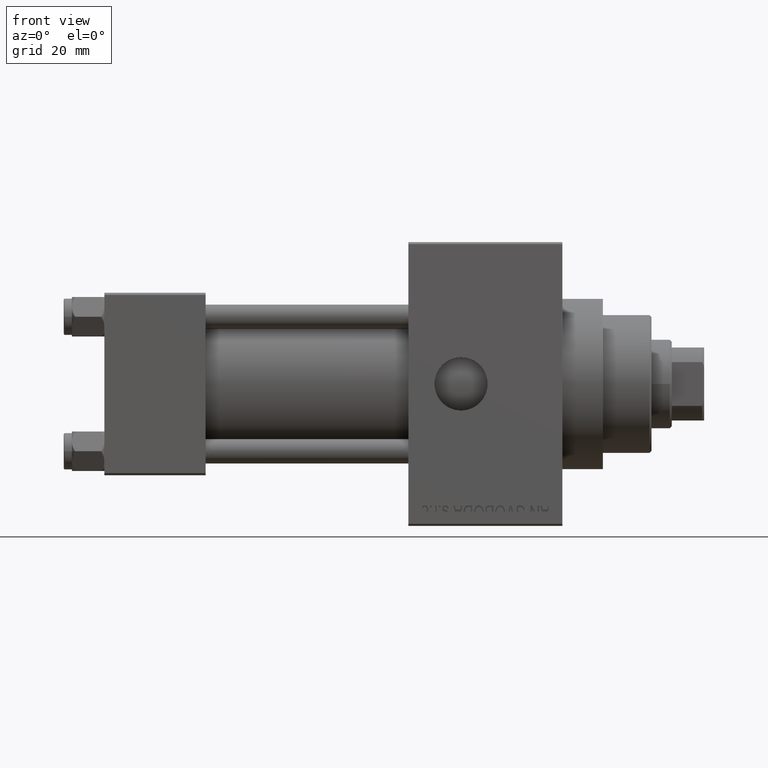
[diagram: clean part render]
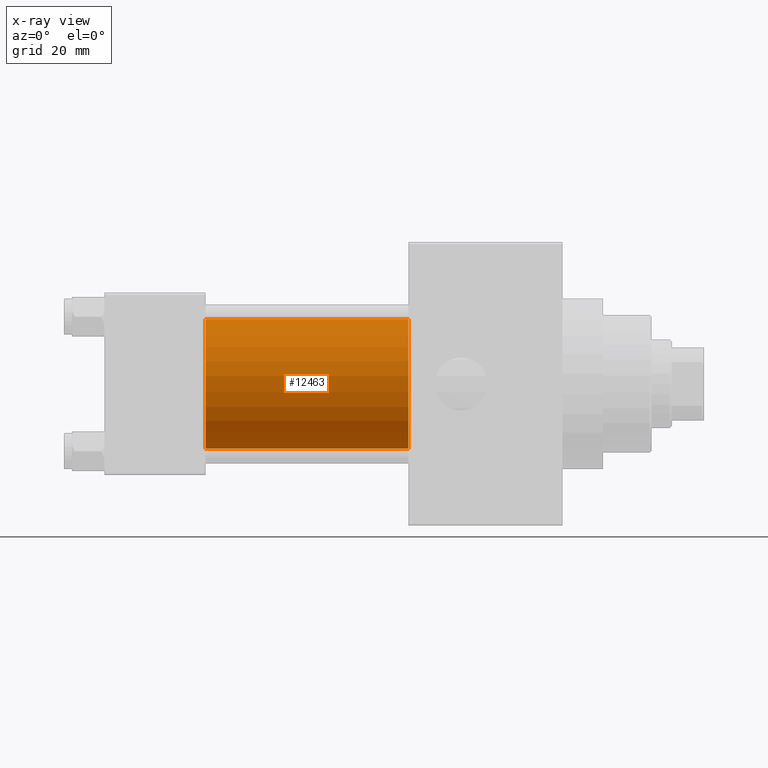
[diagram: x-ray — body ghosted, one internal face saturated and labeled with its STEP entity id]
A machine part, front view, then the same camera in x-ray: the body is ghosted and one INTERNAL B-rep face — a face not visible from any outside direction — is saturated and labeled: STEP entity #12463.
In plain terms, the highlighted cylindrical surface (partial cylindrical patch) has radius 16 mm, axis along (-1, -0, -0).
Its self-contained STEP definition (entity closure, byte-faithful):
#1811 = DIRECTION ( 'NONE',  ( 1.000000000000000000, 0.000000000000000000, 0.000000000000000000 ) ) ;
#2063 = CARTESIAN_POINT ( 'NONE',  ( 75.00000000000001421, -2.602085213965210642E-15, 0.000000000000000000 ) ) ;
#2478 = EDGE_CURVE ( 'NONE', #14866, #41363, #6008, .T. ) ;
#3382 = CARTESIAN_POINT ( 'NONE',  ( 25.00000000000000000, -6.426503353294456087E-16, -16.00000000000000000 ) ) ;
#4296 = LINE ( 'NONE', #16445, #6052 ) ;
#6008 = LINE ( 'NONE', #47478, #37175 ) ;
#6052 = VECTOR ( 'NONE', #39293, 1000.000000000000000 ) ;
#6061 = EDGE_CURVE ( 'NONE', #19792, #41363, #24598, .T. ) ;
#6399 = CARTESIAN_POINT ( 'NONE',  ( 75.00000000000001421, -6.426503353294456087E-16, -16.00000000000000000 ) ) ;
#9320 = CARTESIAN_POINT ( 'NONE',  ( 75.00000000000001421, -2.602085213965210642E-15, 16.00000000000000000 ) ) ;
#10058 = ORIENTED_EDGE ( 'NONE', *, *, #48026, .T. ) ;
#11553 = CARTESIAN_POINT ( 'NONE',  ( 25.00000000000000000, -2.602085213965210642E-15, 0.000000000000000000 ) ) ;
#12463 = ADVANCED_FACE ( 'NONE', ( #23060 ), #38947, .F. ) ;
#14866 = VERTEX_POINT ( 'NONE', #6399 ) ;
#16445 = CARTESIAN_POINT ( 'NONE',  ( 75.00000000000001421, -2.602085213965210642E-15, 16.00000000000000000 ) ) ;
#17176 = DIRECTION ( 'NONE',  ( -1.000000000000000000, -0.000000000000000000, -0.000000000000000000 ) ) ;
#19561 = VERTEX_POINT ( 'NONE', #9320 ) ;
#19792 = VERTEX_POINT ( 'NONE', #41819 ) ;
#20021 = EDGE_LOOP ( 'NONE', ( #10058, #38071, #22474, #26946 ) ) ;
#22474 = ORIENTED_EDGE ( 'NONE', *, *, #6061, .F. ) ;
#23060 = FACE_OUTER_BOUND ( 'NONE', #20021, .T. ) ;
#23317 = AXIS2_PLACEMENT_3D ( 'NONE', #2063, #1811, #31380 ) ;
#24552 = EDGE_CURVE ( 'NONE', #19561, #19792, #4296, .T. ) ;
#24598 = CIRCLE ( 'NONE', #31773, 16.00000000000000000 ) ;
#26192 = DIRECTION ( 'NONE',  ( 1.000000000000000000, 0.000000000000000000, 0.000000000000000000 ) ) ;
#26946 = ORIENTED_EDGE ( 'NONE', *, *, #24552, .F. ) ;
#27516 = DIRECTION ( 'NONE',  ( -1.000000000000000000, -0.000000000000000000, -0.000000000000000000 ) ) ;
#30345 = AXIS2_PLACEMENT_3D ( 'NONE', #46411, #27516, #46898 ) ;
#31380 = DIRECTION ( 'NONE',  ( 0.000000000000000000, 0.000000000000000000, -1.000000000000000000 ) ) ;
#31773 = AXIS2_PLACEMENT_3D ( 'NONE', #11553, #26192, #48805 ) ;
#37175 = VECTOR ( 'NONE', #17176, 1000.000000000000000 ) ;
#38071 = ORIENTED_EDGE ( 'NONE', *, *, #2478, .T. ) ;
#38947 = CYLINDRICAL_SURFACE ( 'NONE', #30345, 16.00000000000000000 ) ;
#39293 = DIRECTION ( 'NONE',  ( -1.000000000000000000, -0.000000000000000000, -0.000000000000000000 ) ) ;
#39993 = CIRCLE ( 'NONE', #23317, 16.00000000000000000 ) ;
#41363 = VERTEX_POINT ( 'NONE', #3382 ) ;
#41819 = CARTESIAN_POINT ( 'NONE',  ( 25.00000000000000000, -2.602085213965210642E-15, 16.00000000000000000 ) ) ;
#46411 = CARTESIAN_POINT ( 'NONE',  ( 75.00000000000001421, -2.602085213965210642E-15, 0.000000000000000000 ) ) ;
#46898 = DIRECTION ( 'NONE',  ( 0.000000000000000000, 0.000000000000000000, 1.000000000000000000 ) ) ;
#47478 = CARTESIAN_POINT ( 'NONE',  ( 75.00000000000001421, -6.426503353294456087E-16, -16.00000000000000000 ) ) ;
#48026 = EDGE_CURVE ( 'NONE', #19561, #14866, #39993, .T. ) ;
#48805 = DIRECTION ( 'NONE',  ( 0.000000000000000000, 0.000000000000000000, -1.000000000000000000 ) ) ;